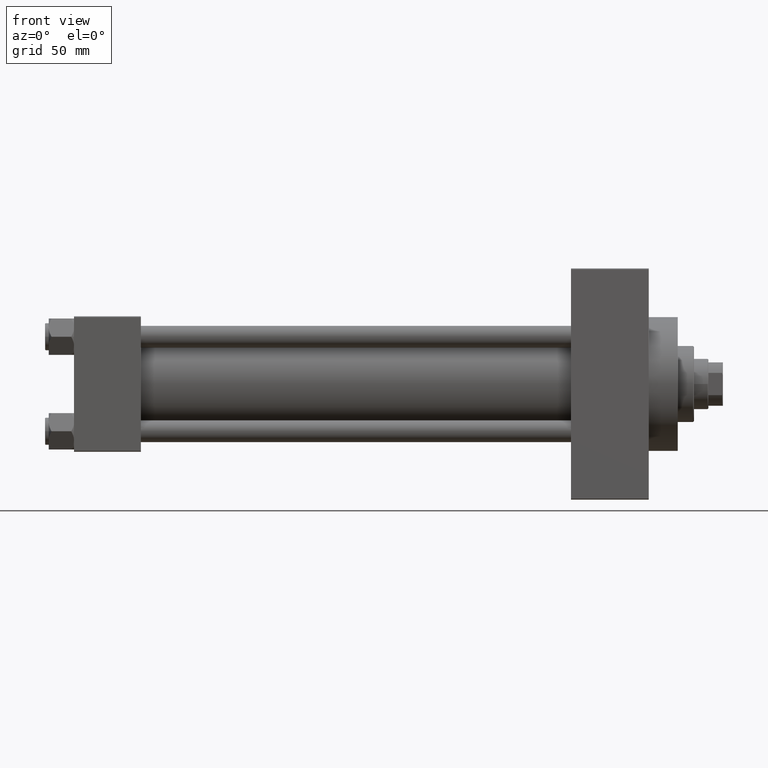
[diagram: clean part render]
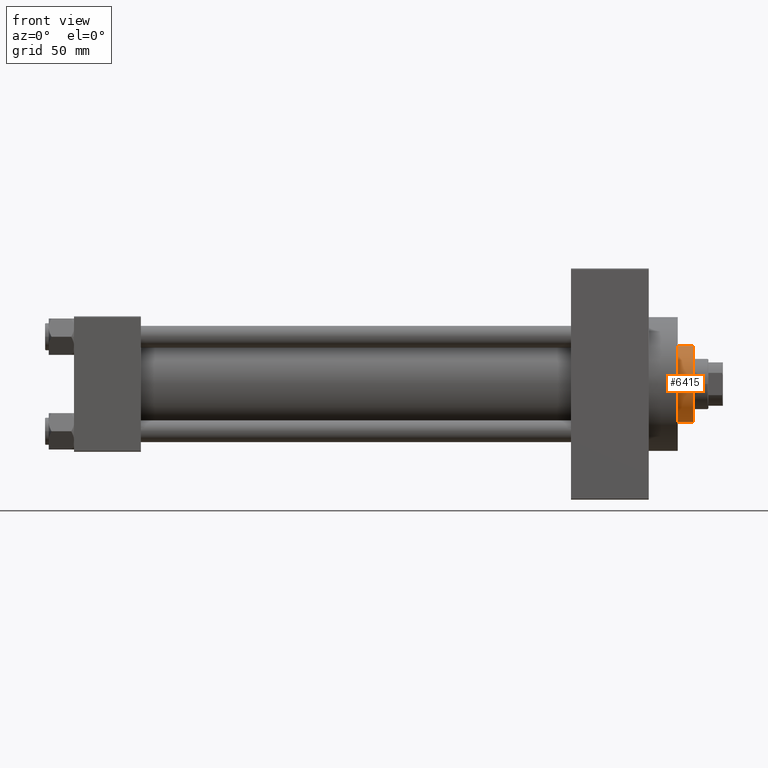
[diagram: same view with one face highlighted and labeled with its STEP entity id]
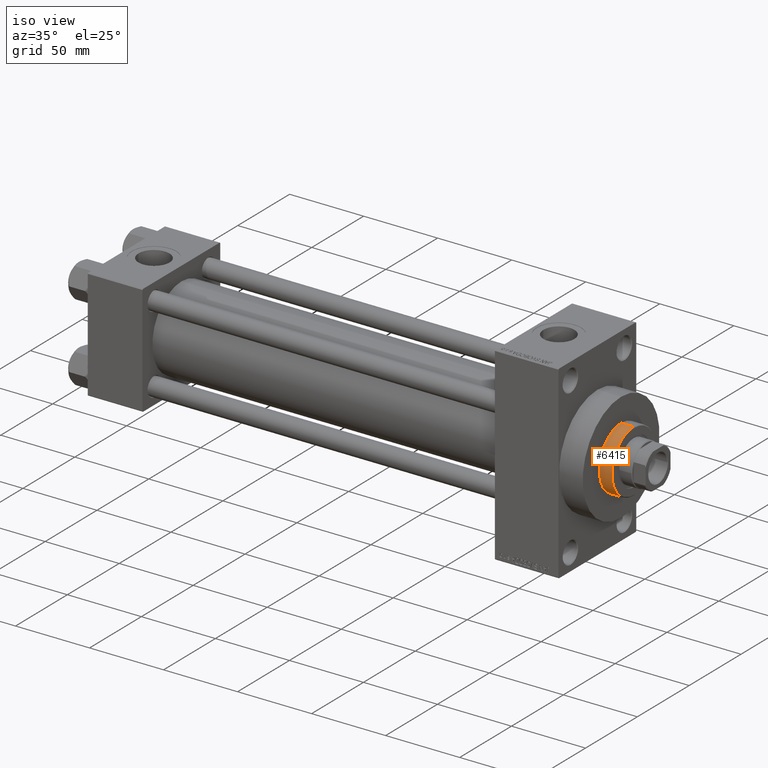
[diagram: same view with one face highlighted and labeled with its STEP entity id]
A machine part, front view. The second image highlights one B-rep face of the part: STEP entity #6415.
A second angle (iso view) of the same face is appended — the face is thin or edge-on in the first view.
In plain terms, the highlighted cylindrical surface (partial cylindrical patch) has radius 21 mm, axis along (-1, 0, 0).
Its self-contained STEP definition (entity closure, byte-faithful):
#1005 = CARTESIAN_POINT ( 'NONE',  ( 0.000000000000000000, 0.000000000000000000, 43.25999999999999801 ) ) ;
#2595 = LINE ( 'NONE', #7583, #43233 ) ;
#4280 = DIRECTION ( 'NONE',  ( 0.000000000000000000, 0.000000000000000000, -1.000000000000000000 ) ) ;
#5526 = CARTESIAN_POINT ( 'NONE',  ( 0.000000000000000000, 0.000000000000000000, 52.25999999999999801 ) ) ;
#6415 = ADVANCED_FACE ( 'NONE', ( #27237 ), #43164, .T. ) ;
#7583 = CARTESIAN_POINT ( 'NONE',  ( 21.00000000000000000, 2.571758278209441661E-15, 52.25999999999999801 ) ) ;
#9271 = DIRECTION ( 'NONE',  ( -1.000000000000000000, 0.000000000000000000, 0.000000000000000000 ) ) ;
#9957 = CARTESIAN_POINT ( 'NONE',  ( -21.00000000000000000, 0.000000000000000000, 51.75999999999999801 ) ) ;
#10605 = CARTESIAN_POINT ( 'NONE',  ( 21.00000000000000000, 2.571758278209441661E-15, 51.75999999999999801 ) ) ;
#11277 = EDGE_CURVE ( 'NONE', #46524, #25136, #2595, .T. ) ;
#11605 = EDGE_CURVE ( 'NONE', #11834, #49299, #33448, .T. ) ;
#11685 = EDGE_CURVE ( 'NONE', #25136, #49299, #25848, .T. ) ;
#11834 = VERTEX_POINT ( 'NONE', #9957 ) ;
#14728 = CARTESIAN_POINT ( 'NONE',  ( -21.00000000000000000, 0.000000000000000000, 52.25999999999999801 ) ) ;
#14987 = DIRECTION ( 'NONE',  ( 1.000000000000000000, 0.000000000000000000, 0.000000000000000000 ) ) ;
#15833 = CARTESIAN_POINT ( 'NONE',  ( 21.00000000000000000, 2.571758278209441661E-15, 43.25999999999999801 ) ) ;
#16408 = AXIS2_PLACEMENT_3D ( 'NONE', #19218, #4280, #14987 ) ;
#19218 = CARTESIAN_POINT ( 'NONE',  ( 0.000000000000000000, 0.000000000000000000, 51.75999999999999801 ) ) ;
#19455 = DIRECTION ( 'NONE',  ( 0.000000000000000000, 0.000000000000000000, 1.000000000000000000 ) ) ;
#20338 = CARTESIAN_POINT ( 'NONE',  ( -21.00000000000000000, 0.000000000000000000, 43.25999999999999801 ) ) ;
#22901 = EDGE_CURVE ( 'NONE', #11834, #46524, #30752, .T. ) ;
#24875 = AXIS2_PLACEMENT_3D ( 'NONE', #5526, #31465, #9271 ) ;
#25136 = VERTEX_POINT ( 'NONE', #15833 ) ;
#25848 = CIRCLE ( 'NONE', #37781, 21.00000000000000000 ) ;
#27237 = FACE_OUTER_BOUND ( 'NONE', #43975, .T. ) ;
#30752 = CIRCLE ( 'NONE', #16408, 21.00000000000000000 ) ;
#31413 = VECTOR ( 'NONE', #48647, 1000.000000000000000 ) ;
#31465 = DIRECTION ( 'NONE',  ( -0.000000000000000000, -0.000000000000000000, -1.000000000000000000 ) ) ;
#33448 = LINE ( 'NONE', #14728, #31413 ) ;
#37781 = AXIS2_PLACEMENT_3D ( 'NONE', #1005, #19455, #45397 ) ;
#37828 = ORIENTED_EDGE ( 'NONE', *, *, #22901, .T. ) ;
#40813 = ORIENTED_EDGE ( 'NONE', *, *, #11685, .T. ) ;
#43164 = CYLINDRICAL_SURFACE ( 'NONE', #24875, 21.00000000000000000 ) ;
#43233 = VECTOR ( 'NONE', #44472, 1000.000000000000000 ) ;
#43975 = EDGE_LOOP ( 'NONE', ( #37828, #46808, #40813, #44136 ) ) ;
#44136 = ORIENTED_EDGE ( 'NONE', *, *, #11605, .F. ) ;
#44472 = DIRECTION ( 'NONE',  ( -0.000000000000000000, -0.000000000000000000, -1.000000000000000000 ) ) ;
#45397 = DIRECTION ( 'NONE',  ( 1.000000000000000000, 0.000000000000000000, 0.000000000000000000 ) ) ;
#46524 = VERTEX_POINT ( 'NONE', #10605 ) ;
#46808 = ORIENTED_EDGE ( 'NONE', *, *, #11277, .T. ) ;
#48647 = DIRECTION ( 'NONE',  ( -0.000000000000000000, -0.000000000000000000, -1.000000000000000000 ) ) ;
#49299 = VERTEX_POINT ( 'NONE', #20338 ) ;